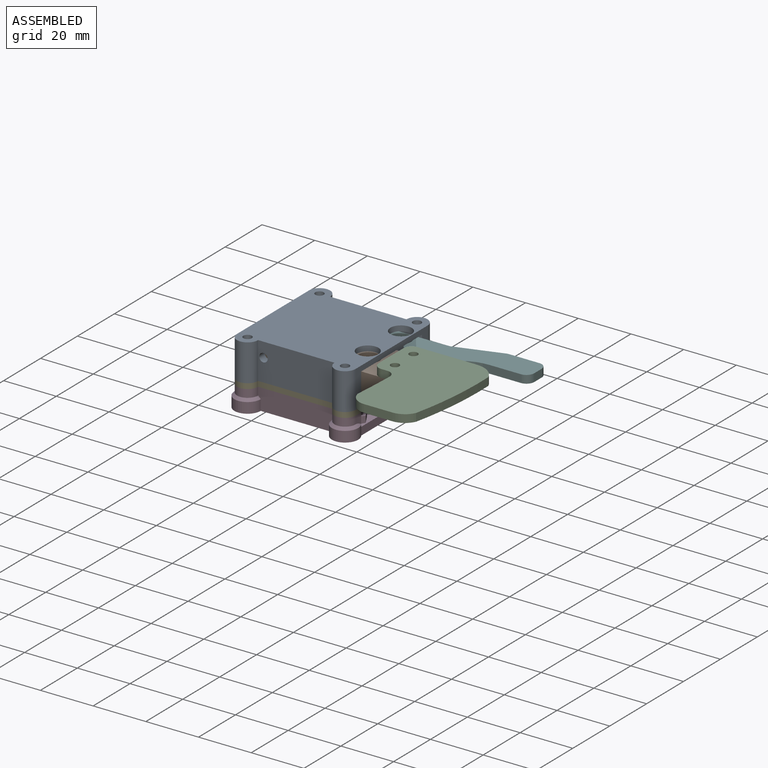
[diagram: assembled view]
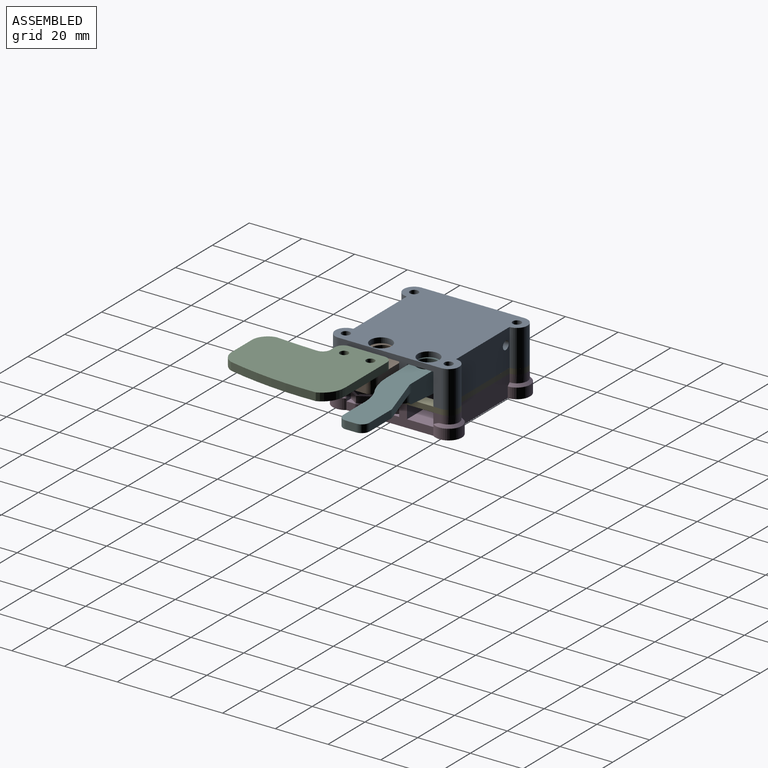
[diagram: assembled view, second angle]
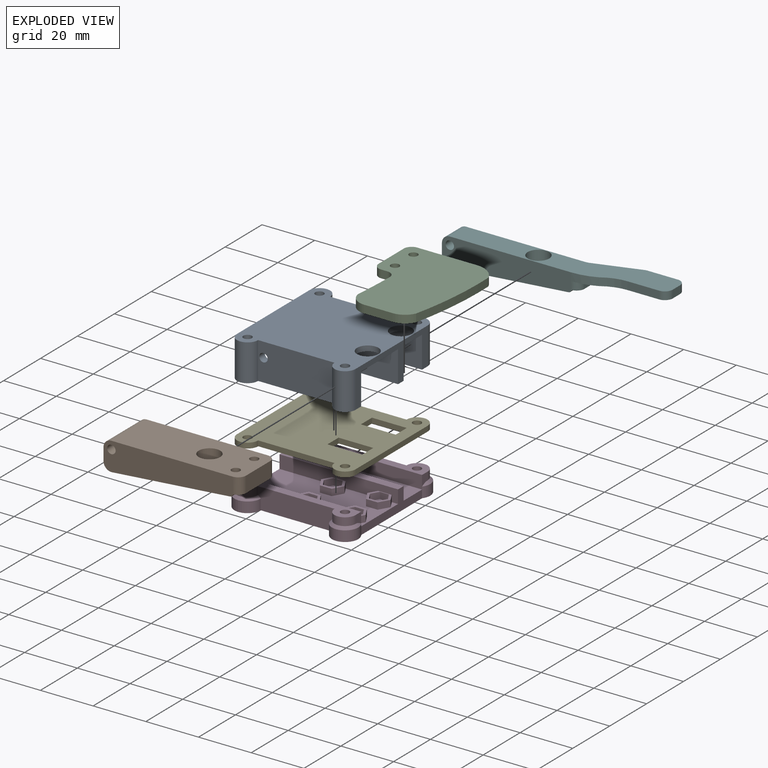
[diagram: exploded view]
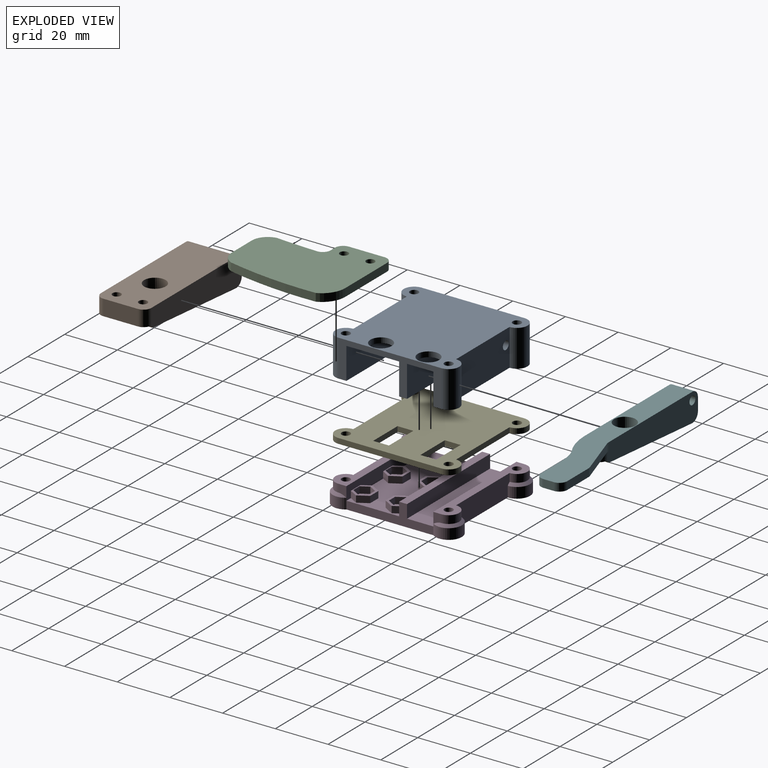
[diagram: exploded view, second angle]
ASSEMBLY  parts=6 mates=5
PART A: 27 faces, bbox 45x47x14 mm
  f0: plane 45x10mm, normal (0,0,-1), area 398.3mm2, adj f4,f8,f11,f20,f22
  f1: plane 45x20.01mm, normal (0,0,-1), area 848.4mm2, adj f4,f8,f10,f17,f19
  f2: plane 28.99x14mm, normal (0,1,0), area 397.9mm2, adj f3,f14,f16,f23,f24
  f3: cylinder r=4mm len=14mm, axis (0,0,-1), area 176mm2, adj f2,f4,f16,f23
  f4: plane 39x14mm, normal (-1,0,0), area 186mm2, adj f0,f1,f3,f5,f16,f17,f18,f19
  f5: cylinder r=4mm len=14mm, axis (0,0,-1), area 176mm2, adj f4,f6,f16,f18
  f6: plane 28.99x14mm, normal (0,-1,0), area 397.9mm2, adj f5,f7,f16,f18,f26
  f7: cylinder r=4mm len=14mm, axis (0,0,-1), area 176mm2, adj f6,f8,f16,f18
  f8: plane 39x14mm, normal (1,0,0), area 186mm2, adj f0,f1,f7,f14,f16,f17,f18,f19
  f9: cylinder r=1.6mm len=14mm, axis (0,0,-1), area 141.1mm2, adj f16,f18
  f10: cylinder r=4.06mm len=8.12mm, axis (0,0,-1), area 51mm2, adj f1,f16
  f11: cylinder r=4.06mm len=8.12mm, axis (0,0,-1), area 51mm2, adj f0,f16
  f12: cylinder r=1.6mm len=14mm, axis (0,0,-1), area 141.1mm2, adj f16,f23
  f13: cylinder r=1.6mm len=14mm, axis (0,0,-1), area 141.1mm2, adj f16,f23
  f14: cylinder r=4mm len=14mm, axis (0,0,-1), area 176mm2, adj f2,f8,f16,f23
  f15: cylinder r=1.6mm len=14mm, axis (0,0,-1), area 141.1mm2, adj f16,f18
  f16: plane 47.01x45mm, normal (0,0,1), area 1719.8mm2, adj f2,f3,f4,f5,f6,f7,f8,f9
  f17: plane 45x12mm, normal (0,1,0), area 532mm2, adj f1,f4,f8,f18,f26
  f18: plane 45x7mm, normal (0,0,-1), area 169.1mm2, adj f4,f5,f6,f7,f8,f9,f15,f17
  f19: plane 45x12mm, normal (0,-1,0), area 532mm2, adj f1,f4,f8,f21,f25
  f20: plane 45x12mm, normal (0,1,0), area 532mm2, adj f0,f4,f8,f21,f25
  f21: plane 45x3mm, normal (0,0,-1), area 135mm2, adj f4,f8,f19,f20
  f22: plane 45x12mm, normal (0,-1,0), area 532mm2, adj f0,f4,f8,f23,f24
  f23: plane 45x7mm, normal (0,0,-1), area 169.2mm2, adj f2,f3,f4,f8,f12,f13,f14,f22
  f24: cylinder r=1.6mm len=3.2mm, axis (0,1,0), area 30.1mm2, adj f2,f22
  f25: cylinder r=1.6mm len=3.2mm, axis (0,1,0), area 30.1mm2, adj f19,f20
  f26: cylinder r=1.6mm len=3.2mm, axis (0,1,0), area 30.1mm2, adj f6,f17
PART B: 40 faces, bbox 52x19.1x10.7 mm
  f0: plane 2.55x1.15mm, normal (0,1,0), area 1.9mm2, adj f3,f4,f5,f6,f31
  f1: plane 46.84x4.75mm, normal (0,-1,0), area 142.3mm2, adj f3,f8,f16,f17,f21
  f2: plane 13.1x6mm, normal (-1,0,0), area 78.6mm2, adj f3,f10,f19,f20
  f3: plane 52x18.91mm, normal (0,0,-1), area 801.8mm2, adj f0,f1,f2,f4,f8,f11,f14,f18
  f4: cylinder r=0.95mm len=1.3mm, axis (0,-1,0), area 1.3mm2, adj f0,f3,f5,f12,f20
  f5: cylinder r=1mm len=1.3mm, axis (0,-1,0), area 1.3mm2, adj f0,f4,f6,f12
  f6: plane 44.84x3.66mm, normal (-0.08,0,-1), area 58.5mm2, adj f0,f5,f7,f11,f12,f31,f32
  f7: cylinder r=3mm len=3.24mm, axis (0,-1,0), area 6.4mm2, adj f6,f8,f11,f12
  f8: plane 19.1x4.74mm, normal (1,0,0), area 61.8mm2, adj f1,f3,f7,f9,f11,f12,f13,f17
  f9: cylinder r=3mm len=19.1mm, axis (0,-1,0), area 90mm2, adj f8,f10,f12,f13
  f10: plane 49x19.1mm, normal (0,0,1), area 863.1mm2, adj f2,f9,f12,f13,f19,f20,f35,f36
  f11: plane 46.82x4.75mm, normal (0,1,0), area 142.3mm2, adj f3,f6,f7,f8,f32
  f12: plane 49x10.75mm, normal (0,-1,0), area 428.6mm2, adj f4,f5,f6,f7,f8,f9,f10,f20
  f13: plane 49x10.75mm, normal (0,1,0), area 428.6mm2, adj f8,f9,f10,f14,f15,f16,f17,f19
  f14: cylinder r=0.95mm len=1.3mm, axis (0,-1,0), area 1.3mm2, adj f3,f13,f15,f18,f19
  f15: cylinder r=1mm len=1.3mm, axis (0,-1,0), area 1.3mm2, adj f13,f14,f16,f18
  f16: plane 44.84x3.66mm, normal (-0.08,0,-1), area 58.5mm2, adj f1,f13,f15,f17,f18,f21,f22
  f17: cylinder r=3mm len=3.24mm, axis (0,-1,0), area 6.4mm2, adj f1,f8,f13,f16
  f18: plane 2.57x1.15mm, normal (0,-1,0), area 1.9mm2, adj f3,f14,f15,f16,f22
  f19: cylinder r=3mm len=6.36mm, axis (0,0,1), area 28.4mm2, adj f2,f3,f10,f13,f14
  f20: cylinder r=3mm len=6.36mm, axis (0,0,-1), area 28.4mm2, adj f2,f3,f4,f10,f12
  f21: plane 3.68x2.9mm, normal (-0.5,-0.87,0), area 8.6mm2, adj f1,f3,f16,f22,f26,f27
  f22: plane 3.66x2.9mm, normal (0.5,-0.87,0), area 8.6mm2, adj f3,f16,f18,f21,f23,f27
  f23: plane 3.35x2.5mm, normal (1,0,0), area 8.4mm2, adj f3,f22,f24,f27
  f24: plane 2.9x2.5mm, normal (0.5,0.87,0), area 8.4mm2, adj f3,f23,f25,f27
  f25: plane 2.9x2.5mm, normal (-0.5,0.87,0), area 8.4mm2, adj f3,f24,f26,f27
  f26: plane 3.35x2.5mm, normal (-1,0,0), area 8.4mm2, adj f3,f21,f25,f27
  f27: plane 6.7x5.8mm, normal (0,0,-1), area 21.1mm2, adj f21,f22,f23,f24,f25,f26,f36
  f28: plane 2.9x2.5mm, normal (-0.5,-0.87,0), area 8.4mm2, adj f3,f29,f33,f34
  f29: plane 2.9x2.5mm, normal (0.5,-0.87,0), area 8.4mm2, adj f3,f28,f30,f34
  f30: plane 3.35x2.5mm, normal (1,0,0), area 8.4mm2, adj f3,f29,f31,f34
  f31: plane 3.66x2.9mm, normal (0.5,0.87,0), area 8.6mm2, adj f0,f3,f6,f30,f32,f34
  f32: plane 3.68x2.9mm, normal (-0.5,0.87,0), area 8.6mm2, adj f3,f6,f11,f31,f33,f34
  f33: plane 3.35x2.5mm, normal (-1,0,0), area 8.4mm2, adj f3,f28,f32,f34
  f34: plane 6.7x5.8mm, normal (0,0,-1), area 21.1mm2, adj f28,f29,f30,f31,f32,f33,f35
  f35: cylinder r=1.6mm len=3.5mm, axis (0,0,1), area 35.2mm2, adj f10,f34
  f36: cylinder r=1.6mm len=3.5mm, axis (0,0,1), area 35.2mm2, adj f10,f27
  f37: cylinder r=4.1mm len=8.2mm, axis (0,0,1), area 115.9mm2, adj f10,f38
  f38: plane 8.2x8.2mm, normal (0,0,1), area 52.8mm2, adj f37
  f39: cylinder r=1.6mm len=19.1mm, axis (0,-1,0), area 192mm2, adj f12,f13
PART C: 16 faces, bbox 33.9x3x43.9 mm
  f0: plane 22.51x3mm, normal (0,0,1), area 67.5mm2, adj f1,f13,f14,f15
  f1: cylinder r=3.02mm len=3.15mm, axis (0,1,0), area 14.9mm2, adj f0,f2,f14,f15
  f2: plane 13.45x3mm, normal (-1,0,0), area 40.3mm2, adj f1,f3,f14,f15
  f3: cylinder r=3.13mm len=3.15mm, axis (0,1,0), area 14.8mm2, adj f2,f4,f14,f15
  f4: plane 3x2.29mm, normal (0.01,0,-1), area 6.9mm2, adj f3,f5,f14,f15
  f5: cylinder r=3.01mm len=3.15mm, axis (0,1,0), area 14.7mm2, adj f4,f6,f14,f15
  f6: cylinder r=295.77mm len=15.84mm, axis (0,1,0), area 47.6mm2, adj f5,f7,f14,f15
  f7: cylinder r=6.12mm len=5.83mm, axis (0,1,0), area 25.6mm2, adj f6,f8,f14,f15
  f8: plane 11.01x3mm, normal (0,0,-1), area 33mm2, adj f7,f9,f14,f15
  f9: cylinder r=6.71mm len=6.13mm, axis (0,1,0), area 23.2mm2, adj f8,f10,f14,f15
  f10: cylinder r=139.49mm len=34.43mm, axis (0,1,0), area 104mm2, adj f9,f13,f14,f15
  f11: cylinder r=1.6mm len=3.2mm, axis (0,1,0), area 30.2mm2, adj f14,f15
  f12: cylinder r=1.6mm len=3.2mm, axis (0,1,0), area 30.2mm2, adj f14,f15
  f13: cylinder r=8.81mm len=8.15mm, axis (0,1,0), area 31.3mm2, adj f0,f10,f14,f15
  f14: plane 43.9x33.88mm, normal (0,-1,0), area 1200.3mm2, adj f0,f1,f2,f3,f4,f5,f6,f7
  f15: plane 43.9x33.88mm, normal (0,1,0), area 1200.3mm2, adj f0,f1,f2,f3,f4,f5,f6,f7
PART D: 118 faces, bbox 47x8x49 mm
  f0: cylinder r=1.6mm len=4mm, axis (0,-1,0), area 40.3mm2, adj f25,f117
  f1: cylinder r=1.6mm len=4mm, axis (0,-1,0), area 40.3mm2, adj f25,f110
  f2: cylinder r=1.6mm len=4mm, axis (0,-1,0), area 40.3mm2, adj f33,f103
  f3: cylinder r=1.6mm len=4mm, axis (0,-1,0), area 40.3mm2, adj f33,f96
  f4: plane 45x20.01mm, normal (0,1,0), area 706.6mm2, adj f8,f12,f20,f27,f39,f40,f41,f42
  f5: plane 45x10mm, normal (0,1,0), area 450.1mm2, adj f8,f12,f15,f28
  f6: plane 28.99x8mm, normal (0,0,1), area 223mm2, adj f7,f13,f14,f16,f19,f22,f23,f25
  f7: cylinder r=5mm len=10mm, axis (0,-1,0), area 75.7mm2, adj f6,f8,f14,f16,f20
  f8: plane 33.01x8mm, normal (1,0,0), area 114mm2, adj f4,f5,f7,f9,f14,f15,f26,f27
  f9: cylinder r=5mm len=10mm, axis (0,-1,0), area 75.7mm2, adj f8,f10,f14,f17,f28
  f10: plane 28.99x8mm, normal (0,0,-1), area 223mm2, adj f9,f11,f14,f17,f18,f30,f31,f33
  f11: cylinder r=5mm len=10mm, axis (0,-1,0), area 75.7mm2, adj f10,f12,f14,f18,f28
  f12: plane 33.01x8mm, normal (-1,0,0), area 114mm2, adj f4,f5,f11,f13,f14,f15,f26,f27
  f13: cylinder r=5mm len=10mm, axis (0,-1,0), area 75.7mm2, adj f6,f12,f14,f19,f20
  f14: plane 49x47mm, normal (0,-1,0), area 1768mm2, adj f6,f7,f8,f9,f10,f11,f12,f13
  f15: plane 45x5mm, normal (0,0,-1), area 225mm2, adj f5,f8,f12,f26
  f16: cone r=5mm half-angle=45deg, axis (0,-1,0), area 22.8mm2, adj f6,f7,f23,f24
  f17: cone r=5mm half-angle=45deg, axis (0,-1,0), area 22.8mm2, adj f9,f10,f29,f30
  f18: cone r=5mm half-angle=45deg, axis (0,-1,0), area 22.8mm2, adj f10,f11,f31,f32
  f19: cone r=5mm half-angle=45deg, axis (0,-1,0), area 22.8mm2, adj f6,f13,f21,f22
  f20: plane 45x5mm, normal (0,0,-1), area 199.2mm2, adj f4,f7,f13,f21,f24,f25,f39,f43
  f21: plane 4x3mm, normal (-1,0,0), area 10mm2, adj f19,f20,f22,f25
  f22: cylinder r=4mm len=8mm, axis (0,-1,0), area 37.7mm2, adj f6,f19,f21,f25
  f23: cylinder r=4mm len=8mm, axis (0,-1,0), area 37.7mm2, adj f6,f16,f24,f25
  f24: plane 4x3mm, normal (1,0,0), area 10mm2, adj f16,f20,f23,f25
  f25: plane 45x7mm, normal (0,1,0), area 169mm2, adj f0,f1,f6,f20,f21,f22,f23,f24
  f26: plane 45x3mm, normal (0,1,0), area 135mm2, adj f8,f12,f15,f27
  f27: plane 45x5mm, normal (0,0,1), area 199.2mm2, adj f4,f8,f12,f26,f63,f70,f71,f73
  f28: plane 45x5mm, normal (0,0,1), area 225mm2, adj f5,f9,f11,f29,f32,f33
  f29: plane 4x3mm, normal (1,0,0), area 10mm2, adj f17,f28,f30,f33
  f30: cylinder r=4mm len=8mm, axis (0,-1,0), area 37.7mm2, adj f10,f17,f29,f33
  f31: cylinder r=4mm len=8mm, axis (0,-1,0), area 37.7mm2, adj f10,f18,f32,f33
  f32: plane 4x3mm, normal (-1,0,0), area 10mm2, adj f18,f28,f31,f33
  f33: plane 45x7mm, normal (0,1,0), area 169.1mm2, adj f2,f3,f10,f28,f29,f30,f31,f32
  f34: plane 2.94x2.5mm, normal (0.87,0,0.5), area 8.5mm2, adj f35,f44,f45,f46
  f35: plane 3.4x2.5mm, normal (0,0,1), area 8.5mm2, adj f34,f36,f45,f46
  f36: plane 2.95x2.5mm, normal (-0.87,0,0.5), area 8.5mm2, adj f35,f37,f45,f46
  f37: plane 2.94x2.5mm, normal (-0.87,0,-0.5), area 8.5mm2, adj f36,f38,f45,f46
  f38: plane 3.4x2.5mm, normal (0,0,-1), area 8.5mm2, adj f37,f44,f45,f46
  f39: plane 3.2x2.5mm, normal (0.86,0,0.5), area 9.3mm2, adj f4,f20,f40,f45
  f40: plane 3.87x2.5mm, normal (0.87,0,-0.5), area 11.1mm2, adj f4,f39,f41,f45
  f41: plane 4.46x2.5mm, normal (0,0,-1), area 11.1mm2, adj f4,f40,f42,f45
  f42: plane 3.85x2.5mm, normal (-0.86,0,-0.5), area 11.1mm2, adj f4,f41,f43,f45
  f43: plane 3.24x2.5mm, normal (-0.87,0,0.5), area 9.3mm2, adj f4,f20,f42,f45
  f44: plane 2.95x2.5mm, normal (0.87,0,-0.5), area 8.5mm2, adj f34,f38,f45,f46
  f45: plane 8.92x7.09mm, normal (0,1,0), area 18.5mm2, adj f20,f34,f35,f36,f37,f38,f39,f40
  f46: plane 6.8x5.89mm, normal (0,1,0), area 22mm2, adj f34,f35,f36,f37,f38,f44,f89
  f47: plane 2.94x2.5mm, normal (0.87,0,0.5), area 8.5mm2, adj f48,f57,f58,f59
  f48: plane 3.4x2.5mm, normal (0,0,1), area 8.5mm2, adj f47,f49,f58,f59
  f49: plane 2.94x2.5mm, normal (-0.87,0,0.5), area 8.5mm2, adj f48,f50,f58,f59
  f50: plane 2.94x2.5mm, normal (-0.87,0,-0.5), area 8.5mm2, adj f49,f51,f58,f59
  f51: plane 3.4x2.5mm, normal (0,0,-1), area 8.5mm2, adj f50,f57,f58,f59
  f52: plane 3.25x2.5mm, normal (0.87,0,0.5), area 9.4mm2, adj f4,f20,f53,f58
  f53: plane 3.84x2.5mm, normal (0.86,0,-0.5), area 11.1mm2, adj f4,f52,f54,f58
  f54: plane 4.44x2.5mm, normal (0,0,-1), area 11.1mm2, adj f4,f53,f55,f58
  f55: plane 3.85x2.5mm, normal (-0.87,0,-0.5), area 11.1mm2, adj f4,f54,f56,f58
  f56: plane 3.23x2.5mm, normal (-0.86,0,0.5), area 9.3mm2, adj f4,f20,f55,f58
  f57: plane 2.94x2.5mm, normal (0.87,0,-0.5), area 8.5mm2, adj f47,f51,f58,f59
  f58: plane 8.87x7.09mm, normal (0,1,0), area 18.2mm2, adj f20,f47,f48,f49,f50,f51,f52,f53
  f59: plane 6.8x5.89mm, normal (0,1,0), area 22mm2, adj f47,f48,f49,f50,f51,f57,f88
  f60: plane 3.85x2.5mm, normal (-0.86,0,0.5), area 11.1mm2, adj f4,f61,f70,f71
  f61: plane 4.46x2.5mm, normal (0,0,1), area 11.1mm2, adj f4,f60,f62,f71
  f62: plane 3.87x2.5mm, normal (0.87,0,0.5), area 11.1mm2, adj f4,f61,f63,f71
  f63: plane 3.2x2.5mm, normal (0.86,0,-0.5), area 9.3mm2, adj f4,f27,f62,f71
  f64: plane 2.94x2.5mm, normal (0.87,0,-0.5), area 8.5mm2, adj f65,f69,f71,f72
  f65: plane 2.95x2.5mm, normal (0.87,0,0.5), area 8.5mm2, adj f64,f66,f71,f72
  f66: plane 3.4x2.5mm, normal (0,0,1), area 8.5mm2, adj f65,f67,f71,f72
  f67: plane 2.94x2.5mm, normal (-0.87,0,0.5), area 8.5mm2, adj f66,f68,f71,f72
  f68: plane 2.95x2.5mm, normal (-0.87,0,-0.5), area 8.5mm2, adj f67,f69,f71,f72
  f69: plane 3.4x2.5mm, normal (0,0,-1), area 8.5mm2, adj f64,f68,f71,f72
  f70: plane 3.24x2.5mm, normal (-0.87,0,-0.5), area 9.3mm2, adj f4,f27,f60,f71
  f71: plane 8.92x7.09mm, normal (0,1,0), area 18.5mm2, adj f27,f60,f61,f62,f63,f64,f65,f66
  f72: plane 6.8x5.89mm, normal (0,1,0), area 22mm2, adj f64,f65,f66,f67,f68,f69,f87
  f73: plane 3.23x2.5mm, normal (-0.86,0,-0.5), area 9.3mm2, adj f4,f27,f74,f84
  f74: plane 3.85x2.5mm, normal (-0.87,0,0.5), area 11.1mm2, adj f4,f73,f75,f84
  f75: plane 4.44x2.5mm, normal (0,0,1), area 11.1mm2, adj f4,f74,f76,f84
  f76: plane 3.84x2.5mm, normal (0.86,0,0.5), area 11.1mm2, adj f4,f75,f77,f84
  f77: plane 3.25x2.5mm, normal (0.87,0,-0.5), area 9.4mm2, adj f4,f27,f76,f84
  f78: plane 2.94x2.5mm, normal (0.87,0,0.5), area 8.5mm2, adj f79,f83,f84,f85
  f79: plane 3.4x2.5mm, normal (0,0,1), area 8.5mm2, adj f78,f80,f84,f85
  f80: plane 2.94x2.5mm, normal (-0.87,0,0.5), area 8.5mm2, adj f79,f81,f84,f85
  f81: plane 2.94x2.5mm, normal (-0.87,0,-0.5), area 8.5mm2, adj f80,f82,f84,f85
  f82: plane 3.4x2.5mm, normal (0,0,-1), area 8.5mm2, adj f81,f83,f84,f85
  f83: plane 2.94x2.5mm, normal (0.87,0,-0.5), area 8.5mm2, adj f78,f82,f84,f85
  f84: plane 8.87x7.09mm, normal (0,1,0), area 18.2mm2, adj f27,f73,f74,f75,f76,f77,f78,f79
  f85: plane 6.8x5.89mm, normal (0,1,0), area 22mm2, adj f78,f79,f80,f81,f82,f83,f86
  f86: cylinder r=1.6mm len=3.2mm, axis (0,-1,0), area 30.2mm2, adj f14,f85
  f87: cylinder r=1.6mm len=3.2mm, axis (0,-1,0), area 30.2mm2, adj f14,f72
  f88: cylinder r=1.6mm len=3.2mm, axis (0,-1,0), area 30.2mm2, adj f14,f59
  f89: cylinder r=1.6mm len=3.2mm, axis (0,-1,0), area 30.2mm2, adj f14,f46
  f90: plane 4x3.4mm, normal (0,0,1), area 13.6mm2, adj f14,f91,f95,f96
  f91: plane 4x2.95mm, normal (0.87,0,0.5), area 13.6mm2, adj f14,f90,f92,f96
  f92: plane 4x2.94mm, normal (0.86,0,-0.5), area 13.6mm2, adj f14,f91,f93,f96
  f93: plane 4x3.4mm, normal (0,0,-1), area 13.6mm2, adj f14,f92,f94,f96
  f94: plane 4x2.95mm, normal (-0.87,0,-0.5), area 13.6mm2, adj f14,f93,f95,f96
  f95: plane 4x2.94mm, normal (-0.86,0,0.5), area 13.6mm2, adj f14,f90,f94,f96
  f96: plane 6.8x5.9mm, normal (0,-1,0), area 21.9mm2, adj f3,f90,f91,f92,f93,f94,f95
  f97: plane 4x3.4mm, normal (0,0,1), area 13.6mm2, adj f14,f98,f102,f103
  f98: plane 4x2.95mm, normal (0.87,0,0.5), area 13.6mm2, adj f14,f97,f99,f103
  f99: plane 4x2.94mm, normal (0.86,0,-0.5), area 13.6mm2, adj f14,f98,f100,f103
  f100: plane 4x3.4mm, normal (0,0,-1), area 13.6mm2, adj f14,f99,f101,f103
  f101: plane 4x2.95mm, normal (-0.87,0,-0.5), area 13.6mm2, adj f14,f100,f102,f103
  f102: plane 4x2.94mm, normal (-0.86,0,0.5), area 13.6mm2, adj f14,f97,f101,f103
  f103: plane 6.8x5.9mm, normal (0,-1,0), area 21.9mm2, adj f2,f97,f98,f99,f100,f101,f102
  f104: plane 4x3.4mm, normal (0,0,1), area 13.6mm2, adj f14,f105,f109,f110
  f105: plane 4x2.95mm, normal (0.87,0,0.5), area 13.6mm2, adj f14,f104,f106,f110
  f106: plane 4x2.94mm, normal (0.87,0,-0.5), area 13.6mm2, adj f14,f105,f107,f110
  f107: plane 4x3.4mm, normal (0,0,-1), area 13.6mm2, adj f14,f106,f108,f110
  f108: plane 4x2.95mm, normal (-0.87,0,-0.5), area 13.6mm2, adj f14,f107,f109,f110
  f109: plane 4x2.94mm, normal (-0.87,0,0.5), area 13.6mm2, adj f14,f104,f108,f110
  f110: plane 6.8x5.89mm, normal (0,-1,0), area 21.9mm2, adj f1,f104,f105,f106,f107,f108,f109
  f111: plane 4x3.4mm, normal (0,0,1), area 13.6mm2, adj f14,f112,f116,f117
  f112: plane 4x2.95mm, normal (0.87,0,0.5), area 13.6mm2, adj f14,f111,f113,f117
  f113: plane 4x2.94mm, normal (0.87,0,-0.5), area 13.6mm2, adj f14,f112,f114,f117
  f114: plane 4x3.4mm, normal (0,0,-1), area 13.6mm2, adj f14,f113,f115,f117
  f115: plane 4x2.95mm, normal (-0.87,0,-0.5), area 13.6mm2, adj f14,f114,f116,f117
  f116: plane 4x2.94mm, normal (-0.87,0,0.5), area 13.6mm2, adj f14,f111,f115,f117
  f117: plane 6.8x5.89mm, normal (0,-1,0), area 21.9mm2, adj f0,f111,f112,f113,f114,f115,f116
PART E: 22 faces, bbox 45x47x2 mm
  f0: plane 6x2mm, normal (1,0,0), area 12mm2, adj f1,f14,f20,f21
  f1: plane 13.2x2mm, normal (0,-1,0), area 26.4mm2, adj f0,f2,f20,f21
  f2: plane 6x2mm, normal (-1,0,0), area 12mm2, adj f1,f14,f20,f21
  f3: plane 13.2x2mm, normal (0,-1,0), area 26.4mm2, adj f4,f15,f20,f21
  f4: plane 6x2mm, normal (-1,0,0), area 12mm2, adj f3,f5,f20,f21
  f5: plane 13.2x2mm, normal (0,1,0), area 26.4mm2, adj f4,f15,f20,f21
  f6: plane 28.99x2mm, normal (0,1,0), area 58mm2, adj f7,f18,f20,f21
  f7: cylinder r=4mm len=8mm, axis (0,0,-1), area 25.1mm2, adj f6,f8,f20,f21
  f8: plane 39x2mm, normal (-1,0,0), area 78mm2, adj f7,f9,f20,f21
  f9: cylinder r=4mm len=8mm, axis (0,0,-1), area 25.1mm2, adj f8,f10,f20,f21
  f10: plane 28.99x2mm, normal (0,-1,0), area 58mm2, adj f9,f11,f20,f21
  f11: cylinder r=4mm len=8mm, axis (0,0,-1), area 25.1mm2, adj f10,f12,f20,f21
  f12: plane 39x2mm, normal (1,0,0), area 78mm2, adj f11,f18,f20,f21
  f13: cylinder r=1.6mm len=3.21mm, axis (0,0,-1), area 20.2mm2, adj f20,f21
  f14: plane 13.2x2mm, normal (0,1,0), area 26.4mm2, adj f0,f2,f20,f21
  f15: plane 6x2mm, normal (1,0,0), area 12mm2, adj f3,f5,f20,f21
  f16: cylinder r=1.6mm len=3.21mm, axis (0,0,-1), area 20.2mm2, adj f20,f21
  f17: cylinder r=1.6mm len=3.21mm, axis (0,0,-1), area 20.2mm2, adj f20,f21
  f18: cylinder r=4mm len=8mm, axis (0,0,-1), area 25.1mm2, adj f6,f12,f20,f21
  f19: cylinder r=1.6mm len=3.21mm, axis (0,0,-1), area 20.2mm2, adj f20,f21
  f20: plane 47.01x45mm, normal (0,0,1), area 1664.9mm2, adj f0,f1,f2,f3,f4,f5,f6,f7
  f21: plane 47.01x45mm, normal (0,0,-1), area 1664.9mm2, adj f0,f1,f2,f3,f4,f5,f6,f7
PART F: 33 faces, bbox 82.2x14.7x10.7 mm
  f0: plane 3x2.8mm, normal (-1,0,0), area 8.4mm2, adj f1,f2,f3,f28
  f1: cylinder r=3mm len=3.36mm, axis (0,0,1), area 14.2mm2, adj f0,f3,f13,f14,f28
  f2: cylinder r=3mm len=3.36mm, axis (0,0,-1), area 14.2mm2, adj f0,f3,f4,f12,f28
  f3: plane 52x8.61mm, normal (0,0,-1), area 314.5mm2, adj f0,f1,f2,f4,f8,f11,f14,f18
  f4: cylinder r=0.95mm len=1.3mm, axis (0,-1,0), area 1.3mm2, adj f2,f3,f5,f11,f12
  f5: cylinder r=1mm len=1.3mm, axis (0,-1,0), area 1.3mm2, adj f4,f6,f11,f12
  f6: plane 44.84x3.66mm, normal (-0.08,0,-1), area 58.5mm2, adj f5,f7,f11,f12
  f7: cylinder r=3mm len=3.24mm, axis (0,-1,0), area 6.4mm2, adj f6,f8,f11,f12
  f8: plane 8.8x4.74mm, normal (1,0,0), area 31.3mm2, adj f3,f7,f9,f11,f12,f13,f17,f18
  f9: cylinder r=3mm len=8.8mm, axis (0,-1,0), area 41.5mm2, adj f8,f10,f12,f13
  f10: plane 79.2x14.68mm, normal (0,0,1), area 671.5mm2, adj f9,f12,f13,f19,f22,f23,f24,f25
  f11: plane 49.75x4.75mm, normal (0,1,0), area 144.6mm2, adj f3,f4,f5,f6,f7,f8
  f12: plane 49x10.75mm, normal (0,-1,0), area 426.2mm2, adj f2,f4,f5,f6,f7,f8,f9,f10
  f13: plane 49x10.75mm, normal (0,1,0), area 428.6mm2, adj f1,f8,f9,f10,f14,f15,f16,f17
  f14: cylinder r=0.95mm len=1.5mm, axis (0,-1,0), area 1.6mm2, adj f1,f3,f13,f15,f18
  f15: cylinder r=1mm len=1.5mm, axis (0,-1,0), area 1.5mm2, adj f13,f14,f16,f18
  f16: plane 44.84x3.66mm, normal (-0.08,0,-1), area 67.5mm2, adj f13,f15,f17,f18
  f17: cylinder r=3mm len=3.24mm, axis (0,-1,0), area 7.4mm2, adj f8,f13,f16,f18
  f18: plane 49.75x4.75mm, normal (0,-1,0), area 144.6mm2, adj f3,f8,f14,f15,f16,f17
  f19: cylinder r=4.1mm len=8.2mm, axis (0,0,1), area 115.9mm2, adj f10,f20
  f20: plane 8.2x8.2mm, normal (0,0,1), area 52.8mm2, adj f19
  f21: cylinder r=1.6mm len=8.8mm, axis (0,-1,0), area 88.5mm2, adj f12,f13
  f22: cylinder r=22.27mm len=9.27mm, axis (0,0,1), area 28.7mm2, adj f10,f13,f23,f28
  f23: cylinder r=16.33mm len=8.93mm, axis (0,0,1), area 28.4mm2, adj f10,f22,f24,f28
  f24: plane 12x3mm, normal (0,1,0), area 36mm2, adj f10,f23,f28,f29
  f25: plane 4x3mm, normal (-1,0,0), area 12mm2, adj f10,f28,f29,f30
  f26: plane 11.53x3mm, normal (0,-1,0), area 34.6mm2, adj f10,f28,f30,f31
  f27: plane 17x5.49mm, normal (0.31,-0.95,0), area 53.6mm2, adj f10,f28,f31,f32
  f28: plane 33.99x14.68mm, normal (0,0,-1), area 297mm2, adj f0,f1,f2,f12,f22,f23,f24,f25
  f29: cylinder r=3mm len=3mm, axis (0,0,-1), area 14.1mm2, adj f10,f24,f25,f28
  f30: cylinder r=3mm len=3mm, axis (0,0,1), area 14.1mm2, adj f10,f25,f26,f28
  f31: cylinder r=3mm len=3mm, axis (0,0,1), area 2.8mm2, adj f10,f26,f27,f28
  f32: cylinder r=5mm len=3mm, axis (0,0,1), area 4.7mm2, adj f10,f12,f27,f28
PLACE A t=(61.56,-18.99,-28.7)mm
PLACE B rot(axis=(0,0,1),180deg) t=(92.29,-12.06,-27.95)mm
PLACE C rot(axis=(-1,0,0),90deg) t=(82.3,-76.63,-17.2)mm
PLACE D rot(axis=(1,0,0),90deg) t=(32.28,-40.25,-38.7)mm
PLACE E t=(61.56,-18.99,-42.7)mm
PLACE F rot(axis=(0,0,-1),180deg) t=(92.29,-0.26,-27.95)mm
MATE fastened B.f9 <-> A.f24  axis (0,1,0) through (43.29,-12.26,-20.2)mm
MATE fastened C.f12 <-> B.f36  axis (0,0,-1) through (87.3,-26.81,-17.2)mm
MATE fastened D.f1 <-> E.f11  axis (0,0,1) through (74.26,-35.26,-30.7)mm
MATE fastened F.f9 <-> A.f24  axis (0,-1,0) through (43.29,-9.26,-20.2)mm
MATE fastened E.f9 <-> A.f5  axis (0,0,1) through (37.27,-35.26,-28.7)mm
